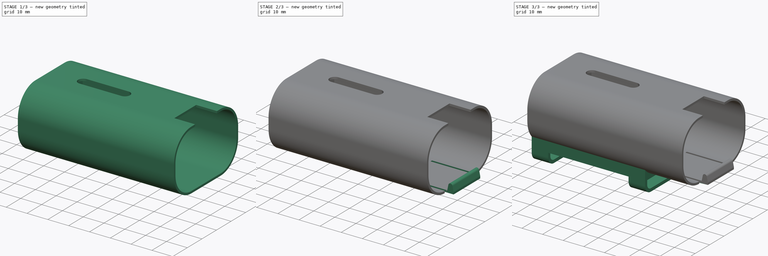
[diagram: build sequence overview — one tinted view per stage of 3, left to right]
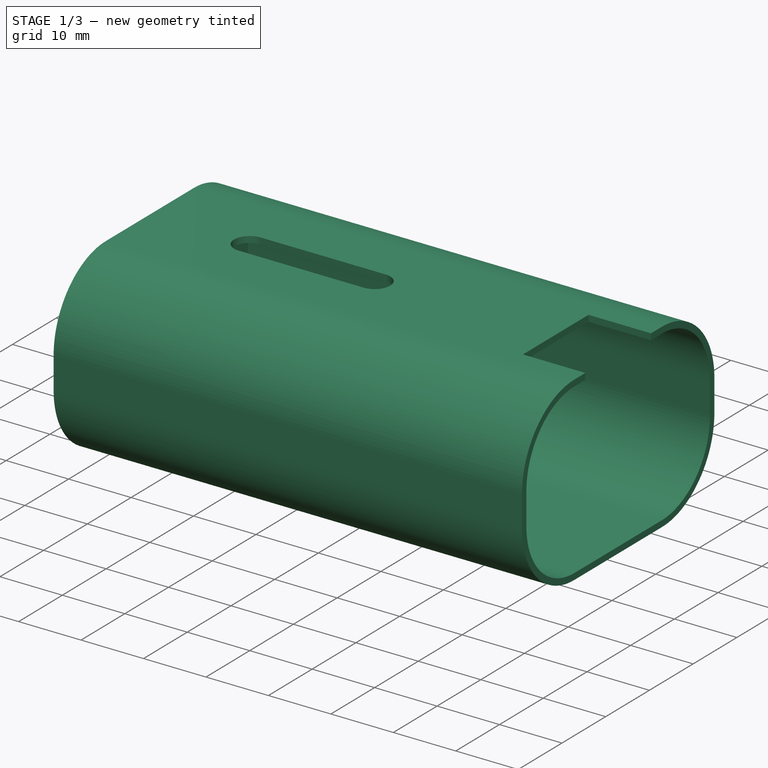
[diagram: stage 1 of 3 — iso view after this stage's code; geometry added in this stage tinted green]
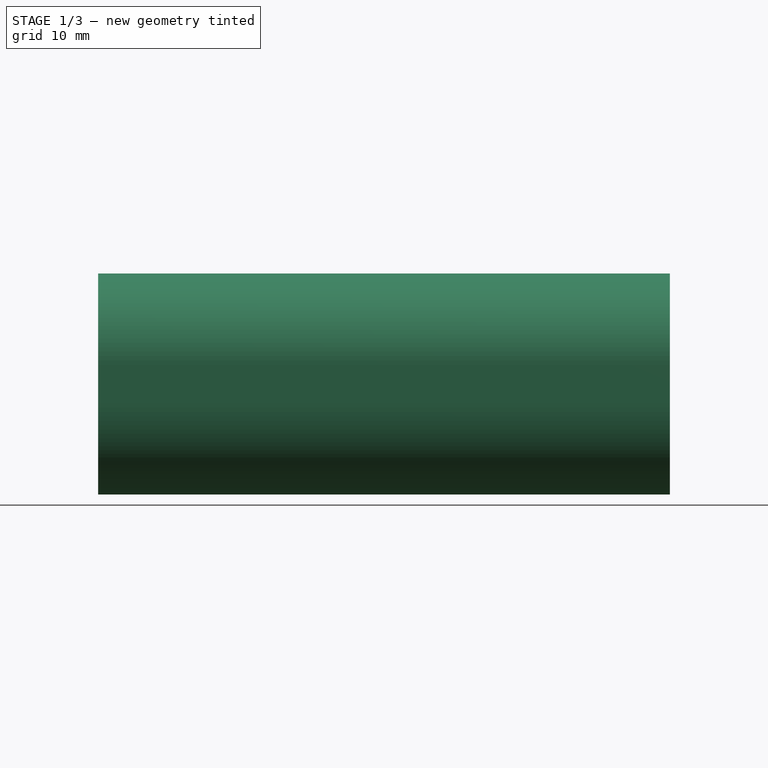
[diagram: stage 1 of 3 — front view after this stage's code; geometry added in this stage tinted green]
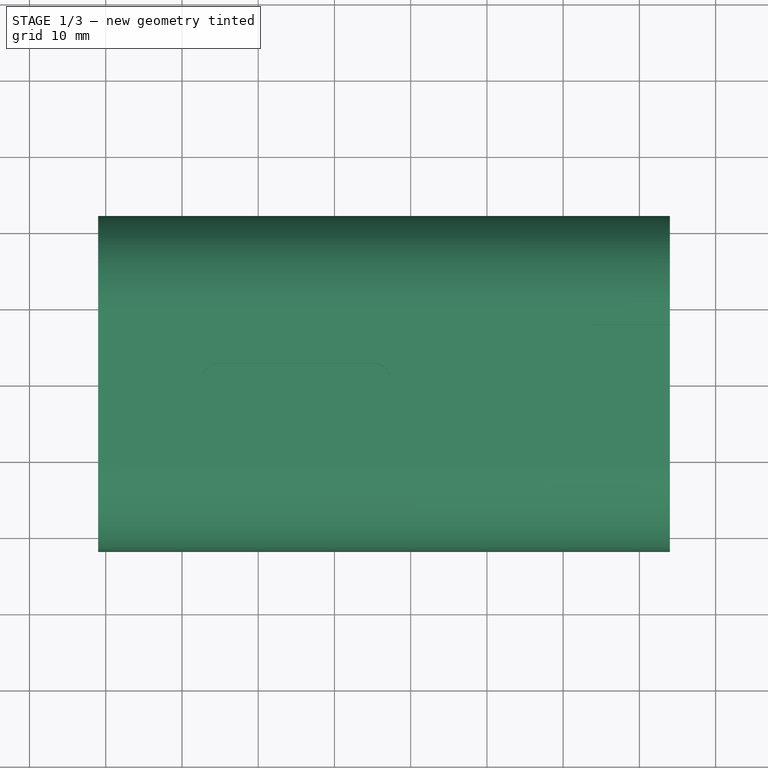
[diagram: stage 1 of 3 — top view after this stage's code; geometry added in this stage tinted green]
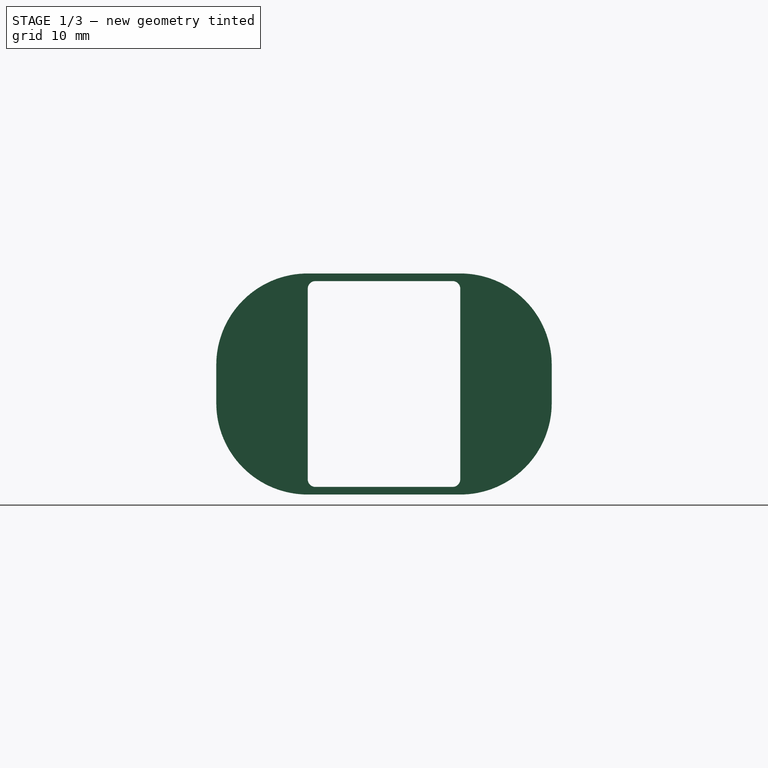
[diagram: stage 1 of 3 — right view after this stage's code; geometry added in this stage tinted green]
FCSTD DOCUMENT  (FreeCAD 0.20R29410 (Git))
Label: Avata_Battery_Holder
License: All rights reserved
LicenseURL: http://en.wikipedia.org/wiki/All_rights_reserved
objects: Sketcher::SketchObject×8, PartDesign::Plane×6, PartDesign::Pad×5, PartDesign::Pocket×3, PartDesign::Body×1
note: 31 computed .brp shape members not serialized (recipe doc carries the construction recipe); baked Part::Feature solids carry a one-line shape summary decoded from their .brp

FEATURE [Sketcher::SketchObject] Sketch
  FullyConstrained = true
  MapMode = 5
  Placement = pos=(0,0,0) rot=(0.57735,0.57735,0.57735;2.0944rad)
  Support = -> [YZ_Plane]
  sketch-geometry (22):
    g0: LineSegment StartX=-10 StartY=13.5 StartZ=0 EndX=10 EndY=13.5 EndZ=0
    g1: LineSegment StartX=21 StartY=2.5 StartZ=0 EndX=21 EndY=-2.5 EndZ=0
    g2: LineSegment StartX=10 StartY=-13.5 StartZ=0 EndX=-10 EndY=-13.5 EndZ=0
    g3: LineSegment StartX=-21 StartY=-2.5 StartZ=0 EndX=-21 EndY=2.5 EndZ=0
    g4: ArcOfCircle CenterX=-10 CenterY=2.5 CenterZ=0 NormalX=0 NormalY=0 NormalZ=1 AngleXU=0 Radius=11 StartAngle=1.5708 EndAngle=3.14159
    g5: ArcOfCircle CenterX=-10 CenterY=-2.5 CenterZ=0 NormalX=0 NormalY=0 NormalZ=1 AngleXU=0 Radius=11 StartAngle=3.14159 EndAngle=4.71239
    g6: ArcOfCircle CenterX=10 CenterY=-2.5 CenterZ=0 NormalX=0 NormalY=0 NormalZ=1 AngleXU=0 Radius=11 StartAngle=4.71239 EndAngle=6.28319
    g7: ArcOfCircle CenterX=10 CenterY=2.5 CenterZ=0 NormalX=0 NormalY=0 NormalZ=1 AngleXU=0 Radius=11 StartAngle=0 EndAngle=1.5708
    g8: LineSegment StartX=0 StartY=13.5 StartZ=0 EndX=0 EndY=-13.5 EndZ=0
    g9: LineSegment StartX=-21 StartY=0 StartZ=0 EndX=21 EndY=0 EndZ=0
    g10: LineSegment StartX=-10 StartY=14.5 StartZ=0 EndX=10 EndY=14.5 EndZ=0
    g11: LineSegment StartX=22 StartY=2.5 StartZ=0 EndX=22 EndY=-2.5 EndZ=0
    g12: LineSegment StartX=10 StartY=-14.5 StartZ=0 EndX=-10 EndY=-14.5 EndZ=0
    g13: LineSegment StartX=-22 StartY=-2.5 StartZ=0 EndX=-22 EndY=2.5 EndZ=0
    g14: LineSegment StartX=0 StartY=14.5 StartZ=0 EndX=0 EndY=13.5 EndZ=0
    g15: LineSegment StartX=-22 StartY=0 StartZ=0 EndX=-21 EndY=0 EndZ=0
    g16: ArcOfCircle CenterX=-10 CenterY=2.5 CenterZ=0 NormalX=0 NormalY=0 NormalZ=1 AngleXU=0 Radius=12 StartAngle=1.5708 EndAngle=3.14159
    g17: ArcOfCircle CenterX=-10 CenterY=-2.5 CenterZ=0 NormalX=0 NormalY=0 NormalZ=1 AngleXU=0 Radius=12 StartAngle=3.14159 EndAngle=4.71239
    g18: ArcOfCircle CenterX=10 CenterY=-2.5 CenterZ=0 NormalX=0 NormalY=0 NormalZ=1 AngleXU=0 Radius=12 StartAngle=4.71239 EndAngle=6.28319
    g19: ArcOfCircle CenterX=10 CenterY=2.5 CenterZ=0 NormalX=0 NormalY=0 NormalZ=1 AngleXU=0 Radius=12 StartAngle=0 EndAngle=1.5708
    g20: LineSegment StartX=0 StartY=-14.5 StartZ=0 EndX=0 EndY=-13.5 EndZ=0
    g21: LineSegment StartX=21 StartY=0 StartZ=0 EndX=22 EndY=0 EndZ=0
  constraints (57):
    c: Horizontal(g0)
    c: Horizontal(g2)
    c: Vertical(g1)
    c: Vertical(g3)
    c: Tangent(g0,g4) = 1.5708
    c: Tangent(g3,g4) = 1.5708
    c: Tangent(g3,g5) = 1.5708
    c: Tangent(g2,g5) = 1.5708
    c: Tangent(g2,g6) = 1.5708
    c: Tangent(g1,g6) = 1.5708
    c: Tangent(g1,g7) = 1.5708
    c: Tangent(g0,g7) = 1.5708
    c: Symmetric(g4,g6,g-1)
    c: Symmetric(g5,g7,g-1)
    c: PointOnObject(g8,g0)
    c: PointOnObject(g8,g2)
    c: Vertical(g8)
    c: PointOnObject(g-1,g8)
    c: PointOnObject(g9,g3)
    c: PointOnObject(g9,g1)
    c: Horizontal(g9)
    c: PointOnObject(g-1,g9)
    c: DistanceY(g8,g8) = 27
    c: DistanceX(g9,g9) = 42
    c: Equal(g4,g5)
    c: DistanceY(g3,g3) = 5
    c: Horizontal(g10)
    c: Horizontal(g12)
    c: Vertical(g11)
    c: Vertical(g13)
    c: PointOnObject(g14,g10)
    c: Coincident(g14,g8)
    c: DistanceY(g14,g14) = 1
    c: PointOnObject(g15,g13)
    c: Coincident(g15,g9)
    c: Horizontal(g15)
    c: DistanceX(g15,g15) = 1
    c: Tangent(g10,g16) = 1.5708
    c: Tangent(g13,g16) = 1.5708
    c: Tangent(g13,g17) = 1.5708
    c: Tangent(g12,g17) = 1.5708
    c: Tangent(g12,g18) = 1.5708
    c: Tangent(g11,g18) = 1.5708
    c: Tangent(g11,g19) = 1.5708
    c: Tangent(g10,g19) = 1.5708
    c: Equal(g16,g19)
    c: Equal(g18,g19)
    c: PointOnObject(g20,g12)
    c: Coincident(g20,g8)
    c: Vertical(g20)
    c: Vertical(g14)
    c: Coincident(g21,g9)
    c: PointOnObject(g21,g11)
    c: Horizontal(g21)
    c: DistanceX(g21,g21) = 1
    c: Equal(g16,g17)
    c: Coincident(g5,g17)
FEATURE [PartDesign::Pad] Pad
  Direction = (1,-2e-16,3e-16)
  Length = 74
  Length2 = 10
  Placement = pos=(0,0,0) rot=(0.57735,0.57735,0.57735;2.0944rad)
  Profile = -> Sketch
  ReferenceAxis = -> Sketch [N_Axis]
  Type = 0
FEATURE [PartDesign::Plane] DatumPlane
  Length = 64.3178
  MapMode = 5
  Placement = pos=(-4.1e-15,6.4e-15,14.5) rot=(0,0,-1;1.5708rad)
  ResizeMode = 0
  Support = -> [Pad]
  Width = 116.818
FEATURE [Sketcher::SketchObject] Sketch001
  ExternalGeometry = -> [Pad]
  FullyConstrained = true
  MapMode = 5
  Placement = pos=(-4.1e-15,6.4e-15,14.5) rot=(0,0,-1;1.5708rad)
  Support = -> [DatumPlane]
  sketch-geometry (8):
    g0: ArcOfCircle CenterX=0 CenterY=15 CenterZ=0 NormalX=0 NormalY=0 NormalZ=1 AngleXU=0 Radius=2.5 StartAngle=3.14159 EndAngle=6.28319
    g1: ArcOfCircle CenterX=0 CenterY=35 CenterZ=0 NormalX=0 NormalY=0 NormalZ=1 AngleXU=0 Radius=2.5 StartAngle=2e-16 EndAngle=3.14159
    g2: LineSegment StartX=2.5 StartY=15 StartZ=0 EndX=2.5 EndY=35 EndZ=0
    g3: LineSegment StartX=-2.5 StartY=35 StartZ=0 EndX=-2.5 EndY=15 EndZ=0
    g4: LineSegment StartX=-7.5 StartY=74 StartZ=0 EndX=7.5 EndY=74 EndZ=0
    g5: LineSegment StartX=7.5 StartY=74 StartZ=0 EndX=7.5 EndY=64 EndZ=0
    g6: LineSegment StartX=7.5 StartY=64 StartZ=0 EndX=-7.5 EndY=64 EndZ=0
    g7: LineSegment StartX=-7.5 StartY=64 StartZ=0 EndX=-7.5 EndY=74 EndZ=0
  constraints (21):
    c: Tangent(g0,g2) = -1.5708
    c: Tangent(g2,g1) = -1.5708
    c: Tangent(g1,g3) = -1.5708
    c: Tangent(g3,g0) = -1.5708
    c: Equal(g0,g1)
    c: PointOnObject(g0,g-2)
    c: PointOnObject(g1,g-2)
    c: Distance(g-1,g1) = 35
    c: Distance(g0,g1) = 20
    c: Distance(g0,g0) = 5
    c: Coincident(g4,g5)
    c: Coincident(g5,g6)
    c: Coincident(g6,g7)
    c: Coincident(g7,g4)
    c: Horizontal(g4)
    c: Vertical(g5)
    c: Vertical(g7)
    c: PointOnObject(g4,g-3)
    c: Symmetric(g6,g5,g-2)
    c: Distance(g6,g5) = 15
    c: Distance(g5,g4) = 10
FEATURE [PartDesign::Pocket] Pocket
  BaseFeature = -> Pad
  Direction = (3e-16,-4e-16,-1)
  Length = 5
  Length2 = 5
  Placement = pos=(0,0,0) rot=(0.57735,0.57735,0.57735;2.0944rad)
  Profile = -> Sketch001
  ReferenceAxis = -> Sketch001 [N_Axis]
  Type = 0
FEATURE [PartDesign::Plane] DatumPlane001
  Length = 60
  MapMode = 5
  Placement = pos=(0,0,0) rot=(0.57735,0.57735,-0.57735;4.18879rad)
  ResizeMode = 0
  Support = -> [Pocket]
  Width = 60
FEATURE [Sketcher::SketchObject] Sketch002
  ExternalGeometry = -> [Pocket]
  FullyConstrained = true
  MapMode = 5
  Placement = pos=(0,0,0) rot=(0.57735,0.57735,-0.57735;4.18879rad)
  Support = -> [DatumPlane001]
  sketch-geometry (16):
    g0: ArcOfCircle CenterX=10 CenterY=2.5 CenterZ=0 NormalX=0 NormalY=0 NormalZ=1 AngleXU=0 Radius=12 StartAngle=3e-16 EndAngle=1.5708
    g1: ArcOfCircle CenterX=-10 CenterY=2.5 CenterZ=0 NormalX=0 NormalY=0 NormalZ=1 AngleXU=0 Radius=12 StartAngle=1.5708 EndAngle=3.14159
    g2: ArcOfCircle CenterX=-10 CenterY=-2.5 CenterZ=0 NormalX=0 NormalY=0 NormalZ=1 AngleXU=0 Radius=12 StartAngle=3.14159 EndAngle=4.71239
    g3: ArcOfCircle CenterX=10 CenterY=-2.5 CenterZ=0 NormalX=0 NormalY=0 NormalZ=1 AngleXU=0 Radius=12 StartAngle=4.71239 EndAngle=6.28319
    g4: LineSegment StartX=22 StartY=2.5 StartZ=0 EndX=22 EndY=-2.5 EndZ=0
    g5: LineSegment StartX=10 StartY=14.5 StartZ=0 EndX=-10 EndY=14.5 EndZ=0
    g6: LineSegment StartX=-22 StartY=2.5 StartZ=0 EndX=-22 EndY=-2.5 EndZ=0
    g7: LineSegment StartX=-10 StartY=-14.5 StartZ=0 EndX=10 EndY=-14.5 EndZ=0
    g8: LineSegment StartX=9 StartY=13.5 StartZ=0 EndX=-9 EndY=13.5 EndZ=0
    g9: LineSegment StartX=9 StartY=-13.5 StartZ=0 EndX=-9 EndY=-13.5 EndZ=0
    g10: LineSegment StartX=10 StartY=12.5 StartZ=0 EndX=10 EndY=-12.5 EndZ=0
    g11: LineSegment StartX=-10 StartY=12.5 StartZ=0 EndX=-10 EndY=-12.5 EndZ=0
    g12: ArcOfCircle CenterX=-9 CenterY=12.5 CenterZ=0 NormalX=0 NormalY=0 NormalZ=1 AngleXU=0 Radius=1 StartAngle=1.5708 EndAngle=3.14159
    g13: ArcOfCircle CenterX=-9 CenterY=-12.5 CenterZ=0 NormalX=0 NormalY=0 NormalZ=1 AngleXU=0 Radius=1 StartAngle=3.14159 EndAngle=4.71239
    g14: ArcOfCircle CenterX=9 CenterY=-12.5 CenterZ=0 NormalX=0 NormalY=0 NormalZ=1 AngleXU=0 Radius=1 StartAngle=4.71239 EndAngle=6.28319
    g15: ArcOfCircle CenterX=9 CenterY=12.5 CenterZ=0 NormalX=0 NormalY=0 NormalZ=1 AngleXU=0 Radius=1 StartAngle=1.28057e-11 EndAngle=1.5708
  constraints (39):
    c: Coincident(g0,g-4)
    c: Coincident(g0,g-4)
    c: Coincident(g1,g-6)
    c: Coincident(g1,g-6)
    c: Coincident(g2,g-8)
    c: Coincident(g2,g-8)
    c: Coincident(g3,g-10)
    c: Coincident(g3,g-10)
    c: Coincident(g4,g0)
    c: Coincident(g4,g3)
    c: Coincident(g5,g0)
    c: Coincident(g5,g1)
    c: Coincident(g6,g1)
    c: Coincident(g6,g2)
    c: Coincident(g7,g2)
    c: Coincident(g7,g3)
    c: Horizontal(g5)
    c: Vertical(g6)
    c: Horizontal(g7)
    c: Vertical(g4)
    c: Tangent(g11,g12) = -1.5708
    c: Tangent(g8,g12) = -1.5708
    c: Tangent(g11,g13) = -1.5708
    c: Tangent(g9,g13) = 1.5708
    c: Tangent(g9,g14) = 1.5708
    c: Tangent(g10,g14) = 1.5708
    c: Tangent(g10,g15) = 1.5708
    c: Tangent(g8,g15) = -1.5708
    c: Equal(g12,g15)
    c: Equal(g15,g13)
    c: Equal(g13,g14)
    c: Horizontal(g8)
    c: Horizontal(g9)
    c: Vertical(g10)
    c: Vertical(g11)
    c: Symmetric(g12,g14,g-1)
    c: PointOnObject(g8,g-11)
    c: PointOnObject(g1,g11)
    c: Distance(g15,g8) = 1
FEATURE [PartDesign::Pad] Pad001
  BaseFeature = -> Pocket
  Direction = (-1,2e-16,-2e-16)
  Length = 1
  Length2 = 10
  Placement = pos=(0,0,0) rot=(0.57735,0.57735,0.57735;2.0944rad)
  Profile = -> Sketch002
  ReferenceAxis = -> Sketch002 [N_Axis]
  Type = 0
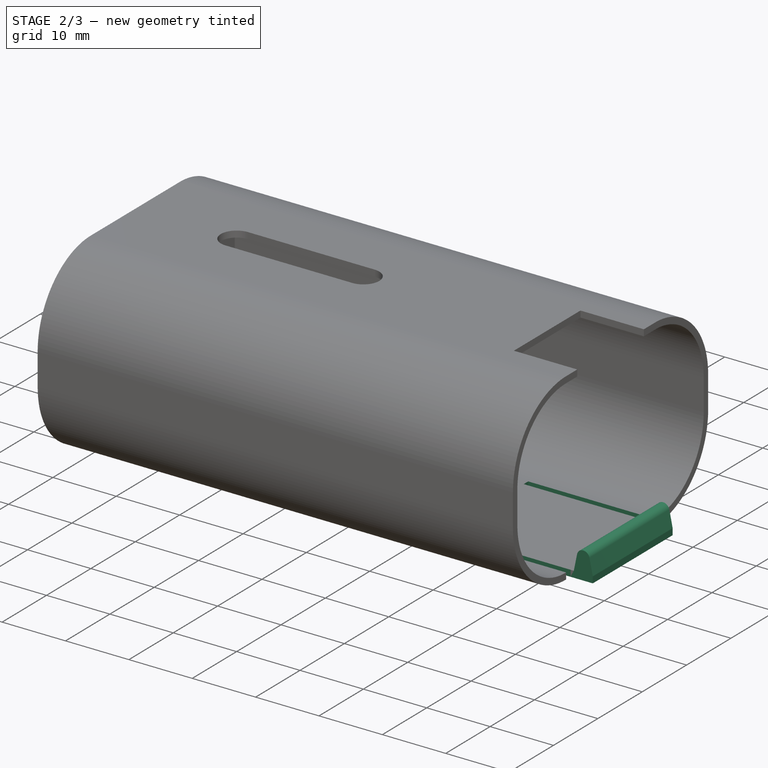
[diagram: stage 2 of 3 — iso view after this stage's code; geometry added in this stage tinted green]
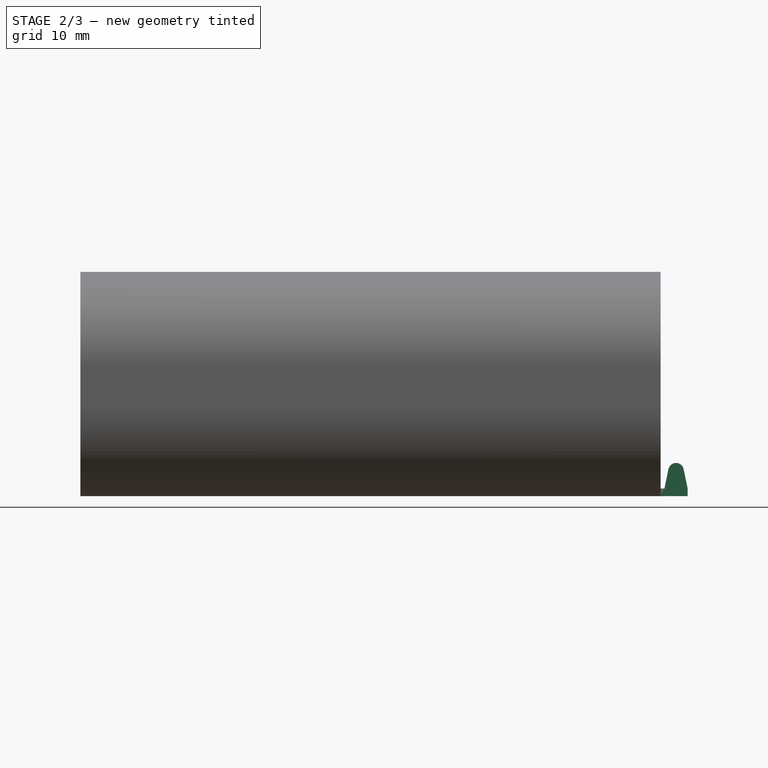
[diagram: stage 2 of 3 — front view after this stage's code; geometry added in this stage tinted green]
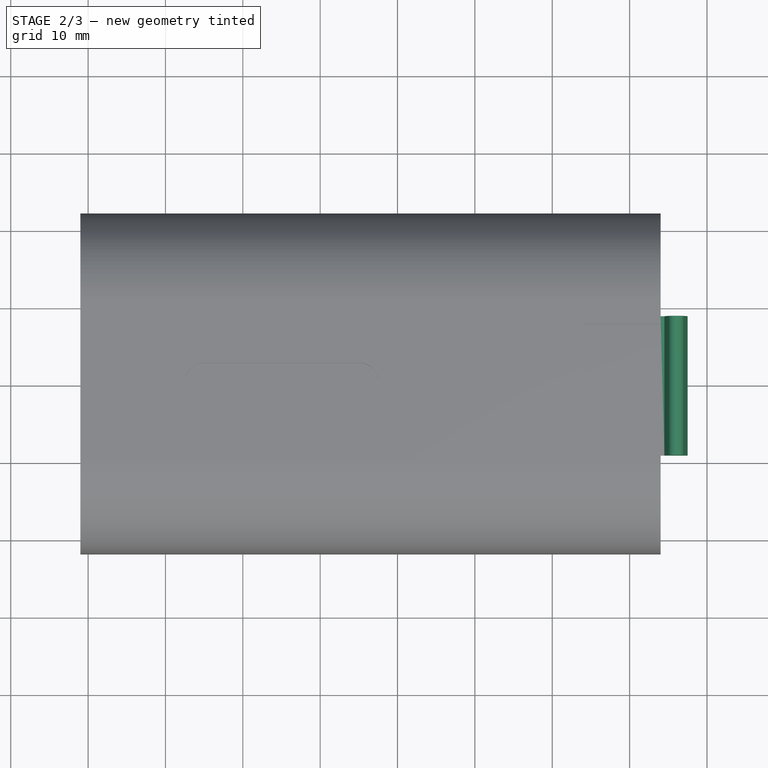
[diagram: stage 2 of 3 — top view after this stage's code; geometry added in this stage tinted green]
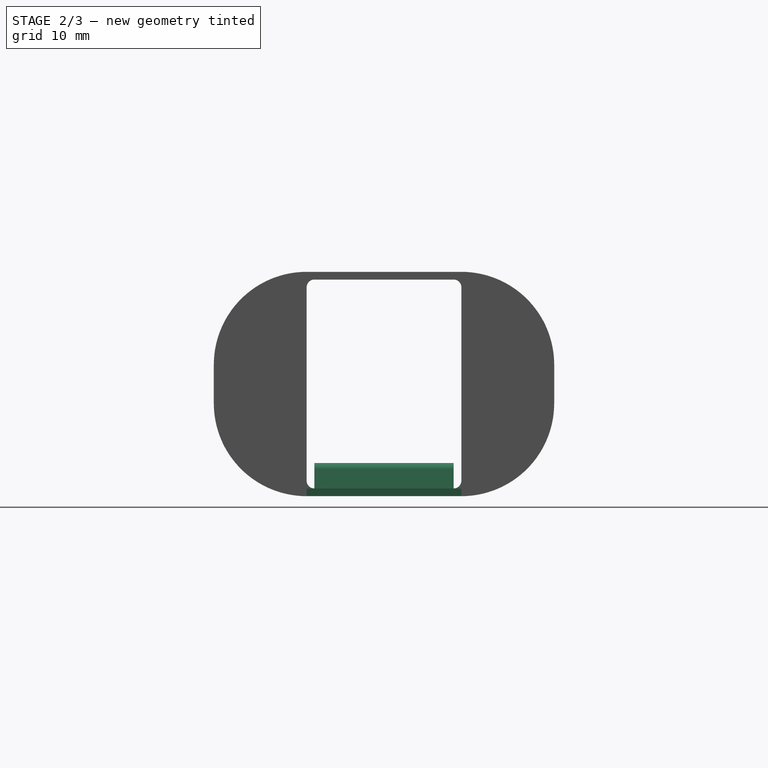
[diagram: stage 2 of 3 — right view after this stage's code; geometry added in this stage tinted green]
FEATURE [PartDesign::Plane] DatumPlane002
  Length = 64.3178
  MapMode = 5
  Placement = pos=(4.1e-15,-6.4e-15,-14.5) rot=(0.707107,0.707107,0;3.14159rad)
  ResizeMode = 0
  Support = -> [Pad001]
  Width = 116.818
FEATURE [Sketcher::SketchObject] Sketch003
  ExternalGeometry = -> [Pad001]
  FullyConstrained = true
  MapMode = 5
  Placement = pos=(4.1e-15,-6.4e-15,-14.5) rot=(0.707107,0.707107,0;3.14159rad)
  Support = -> [DatumPlane002]
  sketch-geometry (8):
    g0: LineSegment StartX=-10 StartY=74 StartZ=0 EndX=-9 EndY=74 EndZ=0
    g1: LineSegment StartX=-9 StartY=74 StartZ=0 EndX=-9 EndY=54 EndZ=0
    g2: LineSegment StartX=9 StartY=54 StartZ=0 EndX=9 EndY=74 EndZ=0
    g3: LineSegment StartX=9 StartY=74 StartZ=0 EndX=10 EndY=74 EndZ=0
    g4: LineSegment StartX=10 StartY=74 StartZ=0 EndX=10 EndY=54 EndZ=0
    g5: LineSegment StartX=-10 StartY=54 StartZ=0 EndX=-10 EndY=74 EndZ=0
    g6: LineSegment StartX=-10 StartY=54 StartZ=0 EndX=-9 EndY=54 EndZ=0
    g7: LineSegment StartX=9 StartY=54 StartZ=0 EndX=10 EndY=54 EndZ=0
  constraints (22):
    c: Coincident(g-4,g0)
    c: PointOnObject(g0,g-4)
    c: Coincident(g0,g1)
    c: Vertical(g1)
    c: PointOnObject(g2,g-4)
    c: Vertical(g2)
    c: Coincident(g2,g3)
    c: Coincident(g3,g-5)
    c: Coincident(g3,g4)
    c: PointOnObject(g4,g-5)
    c: PointOnObject(g5,g-3)
    c: Coincident(g6,g5)
    c: Coincident(g6,g1)
    c: Coincident(g7,g2)
    c: Coincident(g7,g4)
    c: Horizontal(g7)
    c: Horizontal(g6)
    c: Equal(g5,g4)
    c: DistanceY(g4,g4) = 20
    c: Equal(g7,g6)
    c: DistanceX(g6,g6) = 1
    c: Coincident(g5,g0)
FEATURE [PartDesign::Pocket] Pocket001
  BaseFeature = -> Pad001
  Direction = (-3e-16,6e-16,1)
  Length = 5
  Length2 = 5
  Placement = pos=(0,0,0) rot=(0.57735,0.57735,0.57735;2.0944rad)
  Profile = -> Sketch003
  ReferenceAxis = -> Sketch003 [N_Axis]
  Type = 0
FEATURE [PartDesign::Plane] DatumPlane003
  Length = 64.3178
  MapMode = 5
  Placement = pos=(-2e-15,-9,5.5e-15) rot=(0.57735,0.57735,-0.57735;2.0944rad)
  ResizeMode = 0
  Support = -> [Pocket001]
  Width = 116.818
FEATURE [Sketcher::SketchObject] Sketch004
  ExternalGeometry = -> [Pocket001]
  FullyConstrained = true
  MapMode = 5
  Placement = pos=(-2e-15,-9,5.5e-15) rot=(0.57735,0.57735,-0.57735;2.0944rad)
  Support = -> [DatumPlane003]
  sketch-geometry (7):
    g0: LineSegment StartX=13.5 StartY=74 StartZ=0 EndX=13.5 EndY=74.5 EndZ=0
    g1: LineSegment StartX=13.5 StartY=74.5 StartZ=0 EndX=11 EndY=75.021 EndZ=0
    g2: LineSegment StartX=11 StartY=76.979 StartZ=0 EndX=13.5 EndY=77.5 EndZ=0
    g3: LineSegment StartX=13.5 StartY=77.5 StartZ=0 EndX=14.5 EndY=77.5 EndZ=0
    g4: LineSegment StartX=14.5 StartY=77.5 StartZ=0 EndX=14.5 EndY=74 EndZ=0
    g5: LineSegment StartX=14.5 StartY=74 StartZ=0 EndX=13.5 EndY=74 EndZ=0
    g6: ArcOfCircle CenterX=11.204 CenterY=76 CenterZ=0 NormalX=0 NormalY=0 NormalZ=1 AngleXU=0 Radius=1 StartAngle=1.77627 EndAngle=4.50692
  constraints (18):
    c: Coincident(g-4,g0)
    c: Vertical(g0)
    c: Coincident(g0,g1)
    c: Coincident(g2,g3)
    c: Horizontal(g3)
    c: Coincident(g3,g4)
    c: Coincident(g4,g-5)
    c: Coincident(g4,g5)
    c: Coincident(g5,g0)
    c: Vertical(g4)
    c: DistanceY(g4,g4) = 3.5
    c: DistanceY(g0,g0) = 0.5
    c: Equal(g5,g3)
    c: Tangent(g1,g6) = 1.5708
    c: Tangent(g2,g6) = 1.5708
    c: DistanceX(g1,g1) = 2.5
    c: Radius(g6) = 1
    c: Equal(g2,g1)
FEATURE [PartDesign::Pad] Pad002
  BaseFeature = -> Pocket001
  Direction = (-2e-16,-1,7e-16)
  Length = 18
  Length2 = 10
  Placement = pos=(0,0,0) rot=(0.57735,0.57735,0.57735;2.0944rad)
  Profile = -> Sketch004
  ReferenceAxis = -> Sketch004 [N_Axis]
  Reversed = true
  Type = 0
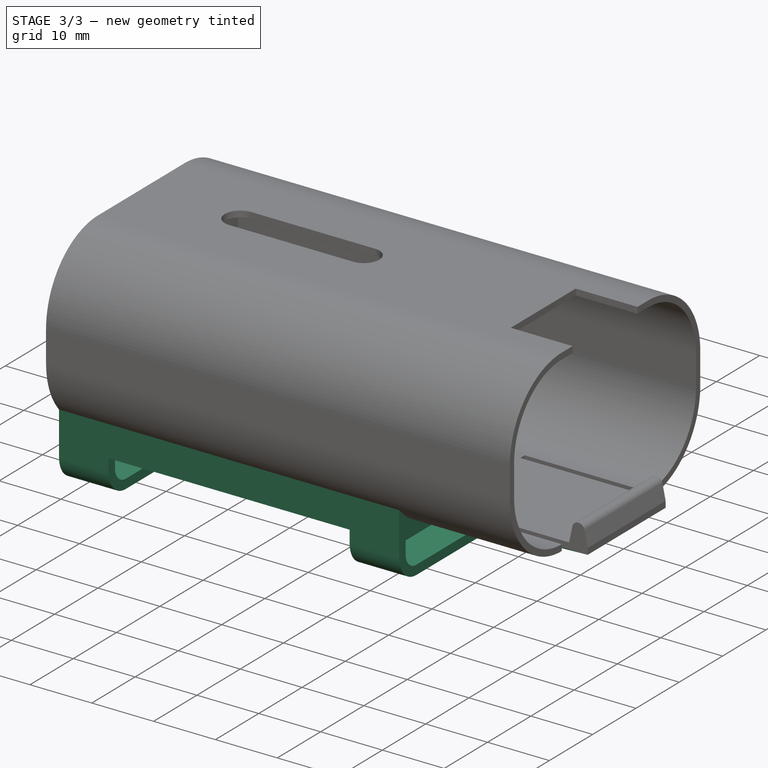
[diagram: stage 3 of 3 — iso view after this stage's code; geometry added in this stage tinted green]
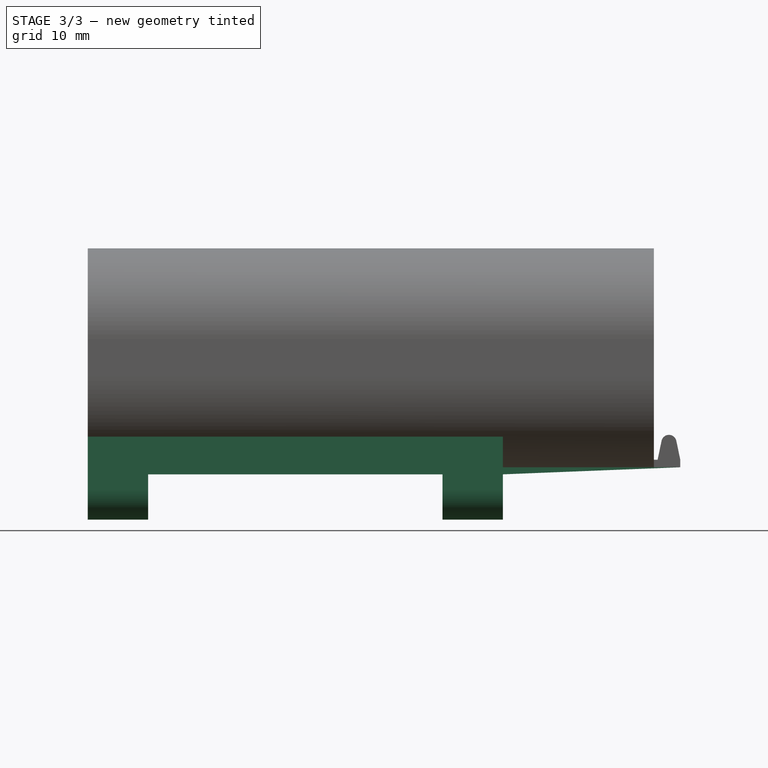
[diagram: stage 3 of 3 — front view after this stage's code; geometry added in this stage tinted green]
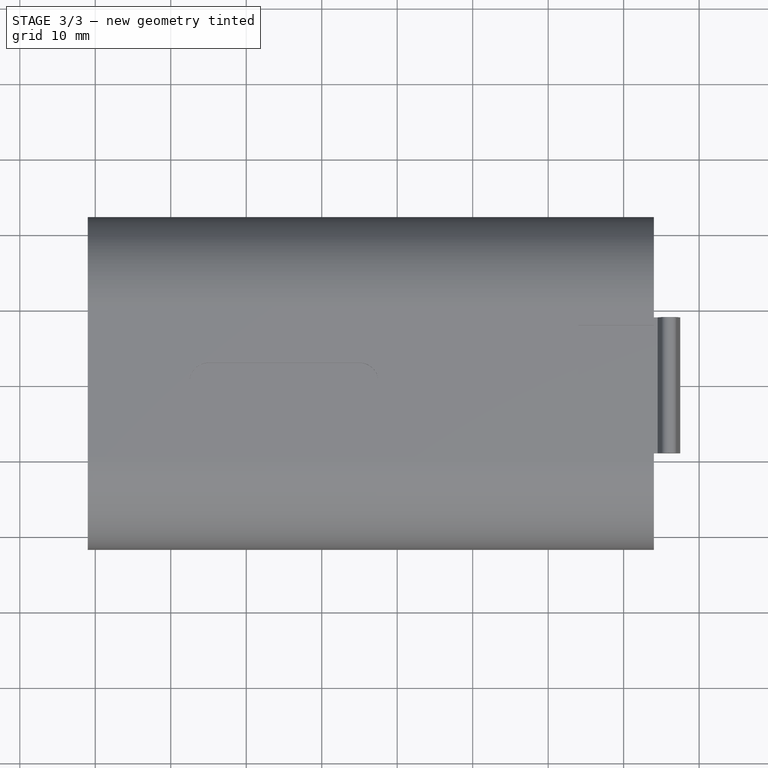
[diagram: stage 3 of 3 — top view after this stage's code; geometry added in this stage tinted green]
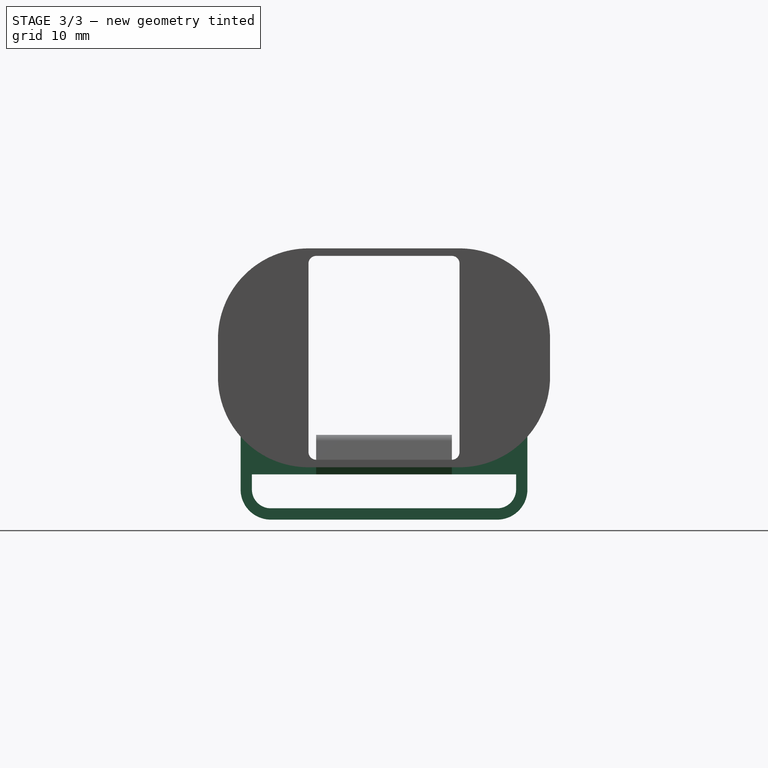
[diagram: stage 3 of 3 — right view after this stage's code; geometry added in this stage tinted green]
FEATURE [PartDesign::Plane] DatumPlane004
  Length = 60
  MapMode = 5
  Placement = pos=(-1,2e-16,-2e-16) rot=(0.57735,0.57735,-0.57735;4.18879rad)
  ResizeMode = 0
  Support = -> [Pad002]
  Width = 60
FEATURE [Sketcher::SketchObject] Sketch005
  ExternalGeometry = -> [Pad002]
  FullyConstrained = true
  MapMode = 5
  Placement = pos=(-1,2e-16,-2e-16) rot=(0.57735,0.57735,-0.57735;4.18879rad)
  Support = -> [DatumPlane004]
  sketch-geometry (19):
    g0: LineSegment StartX=-19 StartY=10.4373 StartZ=0 EndX=-19 EndY=15.4373 EndZ=0
    g1: LineSegment StartX=19 StartY=15.4373 StartZ=0 EndX=19 EndY=10.4373 EndZ=0
    g2: ArcOfCircle CenterX=-10 CenterY=2.5 CenterZ=0 NormalX=0 NormalY=0 NormalZ=1 AngleXU=0 Radius=12 StartAngle=1.5708 EndAngle=2.41886
    g3: ArcOfCircle CenterX=10 CenterY=2.5 CenterZ=0 NormalX=0 NormalY=0 NormalZ=1 AngleXU=0 Radius=12 StartAngle=0.722734 EndAngle=1.5708
    g4: LineSegment StartX=-10 StartY=14.5 StartZ=0 EndX=10 EndY=14.5 EndZ=0
    g5: LineSegment StartX=19 StartY=15.4373 StartZ=0 EndX=19 EndY=17.4373 EndZ=0
    g6: LineSegment StartX=15 StartY=21.4373 StartZ=0 EndX=-15 EndY=21.4373 EndZ=0
    g7: LineSegment StartX=-19 StartY=17.4373 StartZ=0 EndX=-19 EndY=15.4373 EndZ=0
    g8: ArcOfCircle CenterX=-15 CenterY=17.4373 CenterZ=0 NormalX=0 NormalY=0 NormalZ=1 AngleXU=0 Radius=4 StartAngle=1.5708 EndAngle=3.14159
    g9: ArcOfCircle CenterX=15 CenterY=17.4373 CenterZ=0 NormalX=0 NormalY=0 NormalZ=1 AngleXU=0 Radius=4 StartAngle=0 EndAngle=1.5708
    g10: GeomPoint X=0 Y=21.4373 Z=0
    g11: GeomPoint X=0 Y=15.4373 Z=0
    g12: LineSegment StartX=-15 StartY=19.9373 StartZ=0 EndX=15 EndY=19.9373 EndZ=0
    g13: LineSegment StartX=17.5 StartY=17.4373 StartZ=0 EndX=17.5 EndY=15.4373 EndZ=0
    g14: LineSegment StartX=17.5 StartY=15.4373 StartZ=0 EndX=-17.5 EndY=15.4373 EndZ=0
    g15: LineSegment StartX=-17.5 StartY=15.4373 StartZ=0 EndX=-17.5 EndY=17.4373 EndZ=0
    g16: ArcOfCircle CenterX=-15 CenterY=17.4373 CenterZ=0 NormalX=0 NormalY=0 NormalZ=1 AngleXU=0 Radius=2.5 StartAngle=1.5708 EndAngle=3.14159
    g17: ArcOfCircle CenterX=15 CenterY=17.4373 CenterZ=0 NormalX=0 NormalY=0 NormalZ=1 AngleXU=0 Radius=2.5 StartAngle=3e-16 EndAngle=1.5708
    g18: LineSegment StartX=-19 StartY=15.4373 StartZ=0 EndX=-17.5 EndY=15.4373 EndZ=0
  constraints (45):
    c: Vertical(g0)
    c: PointOnObject(g1,g-4)
    c: Vertical(g1)
    c: Coincident(g2,g0)
    c: Coincident(g3,g1)
    c: Coincident(g4,g2)
    c: Coincident(g4,g3)
    c: Horizontal(g4)
    c: DistanceX(g0,g1) = 38
    c: DistanceY(g0,g0) = 5
    c: Coincident(g2,g-5)
    c: Coincident(g2,g-5)
    c: Coincident(g3,g-4)
    c: Horizontal(g6)
    c: Vertical(g5)
    c: Vertical(g7)
    c: Coincident(g7,g0)
    c: Coincident(g1,g5)
    c: Tangent(g6,g8) = -1.5708
    c: Tangent(g7,g8) = -1.5708
    c: Tangent(g6,g9) = -1.5708
    c: Tangent(g5,g9) = -1.5708
    c: Equal(g8,g9)
    c: PointOnObject(g10,g6)
    c: PointOnObject(g10,g-2)
    c: PointOnObject(g11,g-2)
    c: Distance(g10,g11) = 6
    c: Coincident(g13,g14)
    c: Coincident(g14,g15)
    c: Vertical(g13)
    c: Vertical(g15)
    c: Tangent(g12,g16) = 1.5708
    c: Tangent(g15,g16) = 1.5708
    c: Tangent(g12,g17) = 1.5708
    c: Tangent(g13,g17) = 1.5708
    c: Coincident(g16,g8)
    c: Coincident(g9,g17)
    c: Distance(g0,g14) = 1.5
    c: Coincident(g18,g0)
    c: Coincident(g18,g14)
    c: Horizontal(g18)
    c: Symmetric(g14,g13,g-2)
    c: PointOnObject(g11,g14)
    c: DistanceY(g15,g15) = 2
    c: Symmetric(g1,g0,g-2)
FEATURE [PartDesign::Pad] Pad003
  BaseFeature = -> Pad002
  Direction = (-1,2e-16,-2e-16)
  Length = 55
  Length2 = 10
  Placement = pos=(0,0,0) rot=(0.57735,0.57735,0.57735;2.0944rad)
  Profile = -> Sketch005
  ReferenceAxis = -> Sketch005 [N_Axis]
  Reversed = true
  Type = 0
FEATURE [PartDesign::Plane] DatumPlane005
  Length = 64.3178
  MapMode = 5
  Placement = pos=(2.5e-15,9,-5.5e-15) rot=(0.57735,0.57735,0.57735;4.18879rad)
  ResizeMode = 0
  Support = -> [Pad003]
  Width = 116.818
FEATURE [Sketcher::SketchObject] Sketch006
  ExternalGeometry = -> [Pad003]
  FullyConstrained = true
  MapMode = 5
  Placement = pos=(2.5e-15,9,-5.5e-15) rot=(0.57735,0.57735,0.57735;4.18879rad)
  Support = -> [DatumPlane005]
  sketch-geometry (3):
    g0: LineSegment StartX=-14.5 StartY=54 StartZ=0 EndX=-15.4373 EndY=54 EndZ=0
    g1: LineSegment StartX=-15.4373 StartY=54 StartZ=0 EndX=-14.5 EndY=77.5 EndZ=0
    g2: LineSegment StartX=-14.5 StartY=77.5 StartZ=0 EndX=-14.5 EndY=54 EndZ=0
  constraints (6):
    c: Coincident(g-3,g0)
    c: Coincident(g0,g1)
    c: Coincident(g1,g2)
    c: Coincident(g2,g0)
    c: Coincident(g1,g-4)
    c: Coincident(g-5,g0)
FEATURE [PartDesign::Pad] Pad004
  BaseFeature = -> Pad003
  Direction = (2e-16,1,-7e-16)
  Length = 18
  Length2 = 10
  Placement = pos=(0,0,0) rot=(0.57735,0.57735,0.57735;2.0944rad)
  Profile = -> Sketch006
  ReferenceAxis = -> Sketch006 [N_Axis]
  Reversed = true
  Type = 0
FEATURE [Sketcher::SketchObject] Sketch007
  ExternalGeometry = -> [Pad004]
  FullyConstrained = true
  MapMode = 5
  Placement = pos=(6e-15,-1.2e-15,-21.4373) rot=(0.707107,0.707107,0;3.14159rad)
  Support = -> [Pad004]
  sketch-geometry (4):
    g0: LineSegment StartX=-19 StartY=46 StartZ=0 EndX=19 EndY=46 EndZ=0
    g1: LineSegment StartX=19 StartY=46 StartZ=0 EndX=19 EndY=7 EndZ=0
    g2: LineSegment StartX=19 StartY=7 StartZ=0 EndX=-19 EndY=7 EndZ=0
    g3: LineSegment StartX=-19 StartY=7 StartZ=0 EndX=-19 EndY=46 EndZ=0
  constraints (12):
    c: Coincident(g0,g1)
    c: Coincident(g1,g2)
    c: Coincident(g2,g3)
    c: Coincident(g3,g0)
    c: Horizontal(g0)
    c: Horizontal(g2)
    c: Vertical(g1)
    c: Vertical(g3)
    c: DistanceY(g-4,g1) = 8
    c: DistanceY(g0,g-3) = 8
    c: Vertical(g-5,g0)
    c: Vertical(g-6,g0)
FEATURE [PartDesign::Pocket] Pocket002
  BaseFeature = -> Pad004
  Direction = (-3e-16,1e-16,1)
  Length = 6
  Length2 = 5
  Placement = pos=(0,0,0) rot=(0.57735,0.57735,0.57735;2.0944rad)
  Profile = -> Sketch007
  ReferenceAxis = -> Sketch007 [N_Axis]
  Type = 0
FEATURE [PartDesign::Body] Body
  Group = -> [Sketch,Pad,DatumPlane,Sketch001,Pocket,DatumPlane001,Sketch002,Pad001,DatumPlane002,Sketch003,Pocket001,DatumPlane003,Sketch004,Pad002,DatumPlane004,Sketch005,Pad003,DatumPlane005,Sketch006,Pad004,Sketch007,Pocket002]
  Origin = -> Origin
  Tip = -> Pocket002
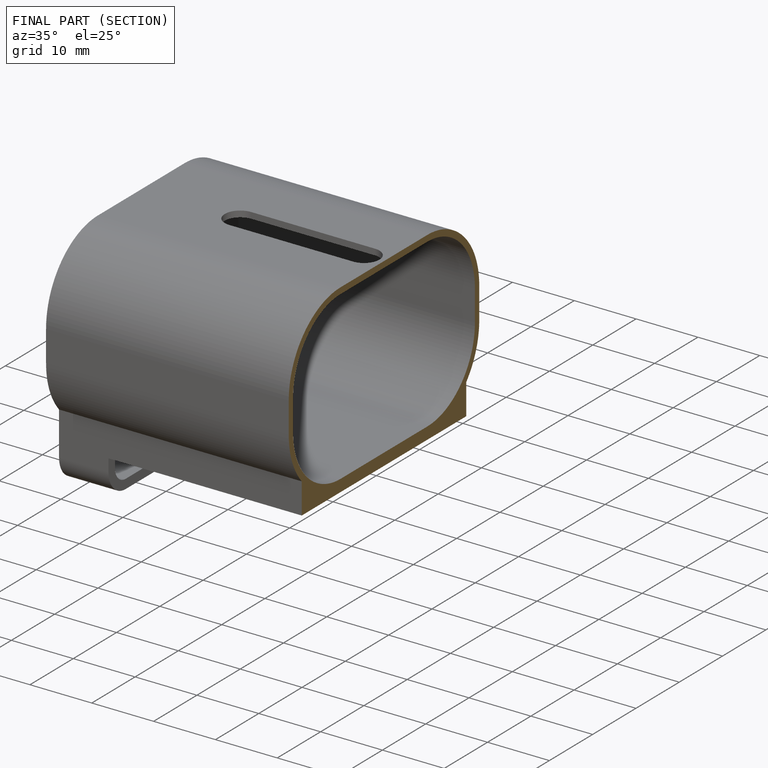
[diagram: finished part — half-section view (interior)]
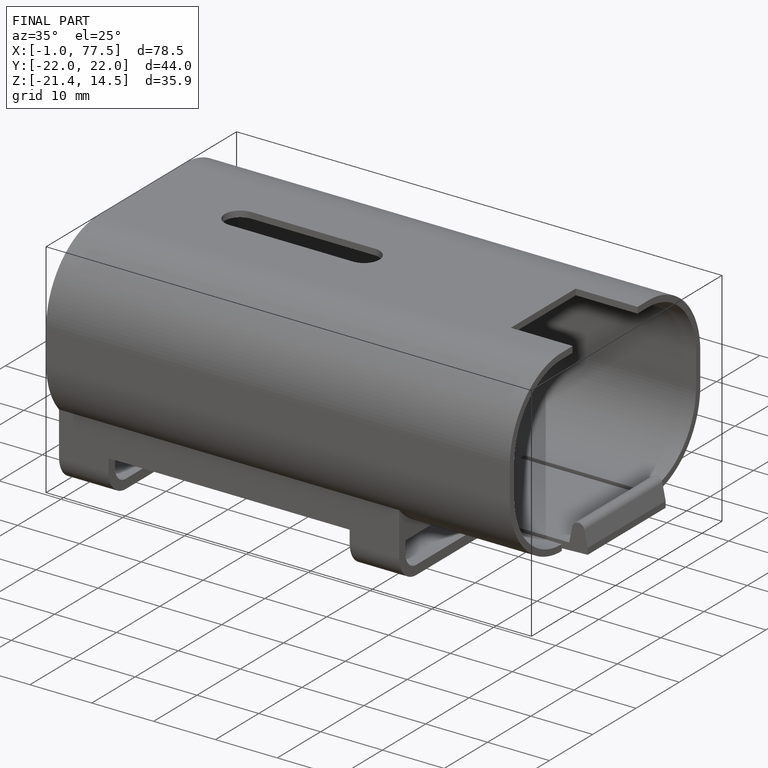
[diagram: finished part — iso view with bounding-box wireframe]
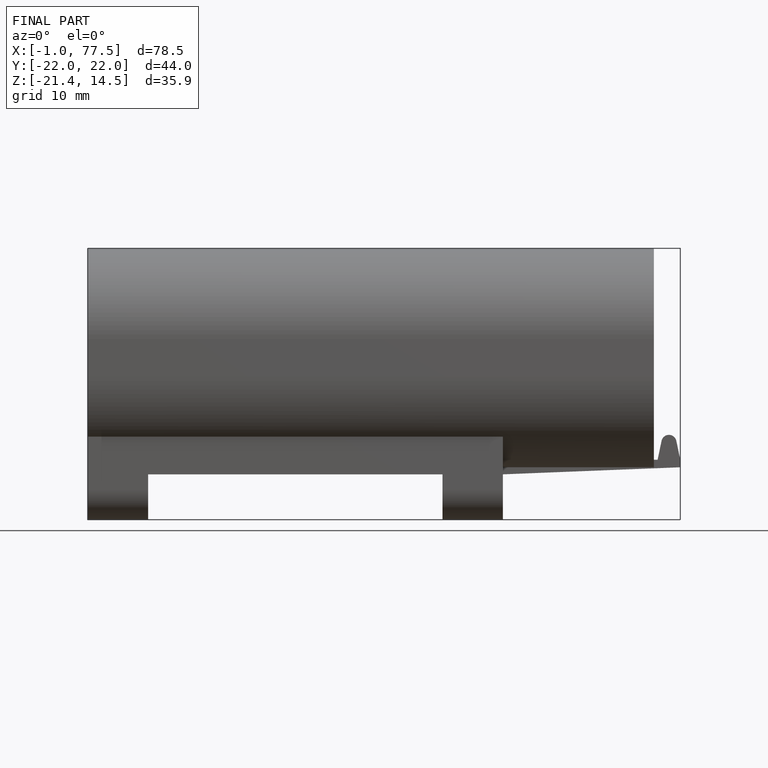
[diagram: finished part — front view with bounding-box wireframe]
